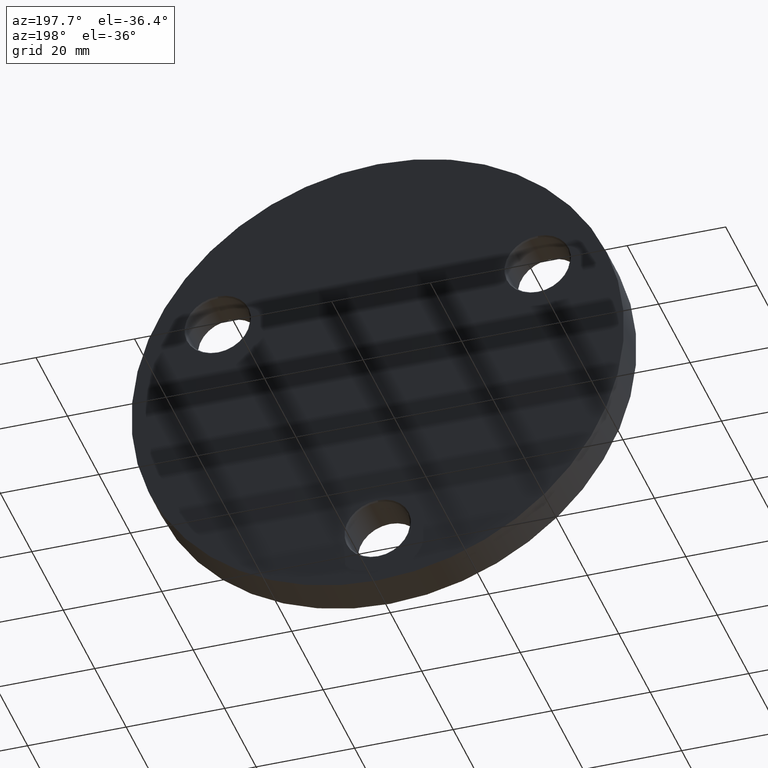
[diagram: clean part render]
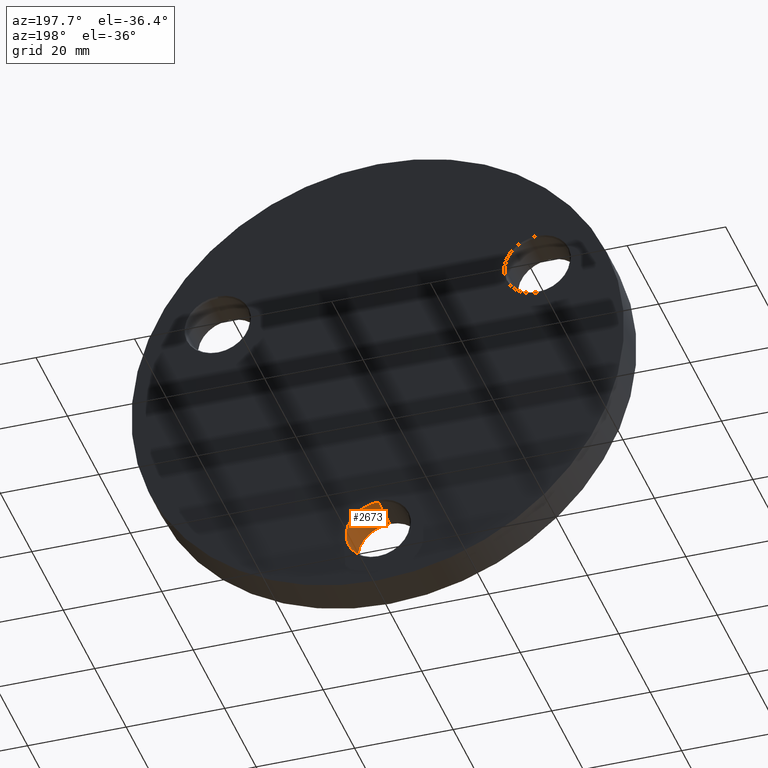
[diagram: same view with one face highlighted and labeled with its STEP entity id]
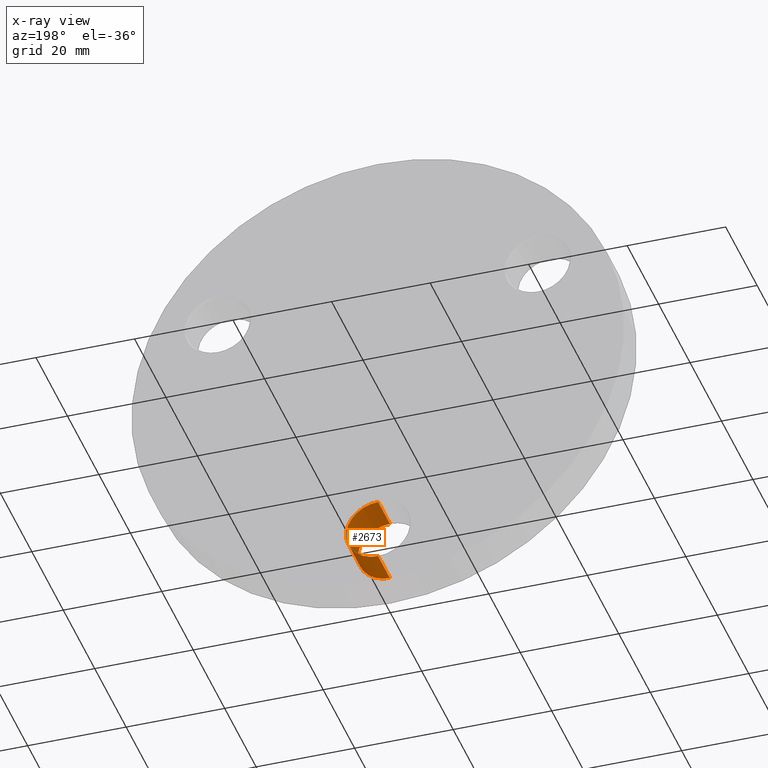
[diagram: x-ray of the same camera — body ghosted, the highlighted face saturated]
A machine part, auxiliary view. The second image highlights one B-rep face of the part: STEP entity #2673.
The next image is the same camera in x-ray: the body ghosted, the highlighted face saturated — about 0% of this face is hidden behind the body in this view.
In plain terms, the highlighted cylindrical surface (edge-blend (fillet) strip) has radius 6.5 mm, axis along (-0, -1, -0).
Its self-contained STEP definition (entity closure, byte-faithful):
#663 = VECTOR ( 'NONE', #8363, 1000.000000000000000 ) ;
#1532 = ORIENTED_EDGE ( 'NONE', *, *, #6232, .T. ) ;
#1585 = FACE_OUTER_BOUND ( 'NONE', #13110, .T. ) ;
#1713 = CARTESIAN_POINT ( 'NONE',  ( 7.960204194457797449E-16, 7.749999999999995559, -31.00000000000000000 ) ) ;
#2111 = DIRECTION ( 'NONE',  ( -0.000000000000000000, -1.000000000000000000, -0.000000000000000000 ) ) ;
#2322 = DIRECTION ( 'NONE',  ( -0.000000000000000000, -1.000000000000000000, -0.000000000000000000 ) ) ;
#2360 = EDGE_CURVE ( 'NONE', #9726, #9815, #11381, .T. ) ;
#2673 = ADVANCED_FACE ( 'NONE', ( #1585 ), #5268, .F. ) ;
#3161 = CARTESIAN_POINT ( 'NONE',  ( 0.000000000000000000, 7.749999999999995559, -37.50000000000000000 ) ) ;
#3786 = AXIS2_PLACEMENT_3D ( 'NONE', #3161, #10976, #5270 ) ;
#3832 = ORIENTED_EDGE ( 'NONE', *, *, #6691, .F. ) ;
#4615 = EDGE_CURVE ( 'NONE', #5491, #9832, #14347, .T. ) ;
#5170 = CARTESIAN_POINT ( 'NONE',  ( 0.000000000000000000, 0.2499999999999716060, -44.00000000000000000 ) ) ;
#5190 = CARTESIAN_POINT ( 'NONE',  ( 0.000000000000000000, 7.749999999999995559, -44.00000000000000000 ) ) ;
#5268 = CYLINDRICAL_SURFACE ( 'NONE', #8099, 6.499999999999999112 ) ;
#5270 = DIRECTION ( 'NONE',  ( 0.000000000000000000, 0.000000000000000000, 1.000000000000000000 ) ) ;
#5491 = VERTEX_POINT ( 'NONE', #5170 ) ;
#5623 = CARTESIAN_POINT ( 'NONE',  ( 7.960204194457797449E-16, 0.2499999999999716060, -31.00000000000000000 ) ) ;
#5698 = DIRECTION ( 'NONE',  ( 0.000000000000000000, 0.000000000000000000, 1.000000000000000000 ) ) ;
#6056 = CARTESIAN_POINT ( 'NONE',  ( 0.000000000000000000, 8.000000000000000000, -37.50000000000000000 ) ) ;
#6232 = EDGE_CURVE ( 'NONE', #9815, #5491, #12039, .T. ) ;
#6691 = EDGE_CURVE ( 'NONE', #9726, #9832, #11487, .T. ) ;
#7204 = ORIENTED_EDGE ( 'NONE', *, *, #4615, .T. ) ;
#7760 = CARTESIAN_POINT ( 'NONE',  ( 0.000000000000000000, 0.2499999999999716060, -37.50000000000000000 ) ) ;
#8099 = AXIS2_PLACEMENT_3D ( 'NONE', #6056, #8361, #13938 ) ;
#8361 = DIRECTION ( 'NONE',  ( -0.000000000000000000, -1.000000000000000000, -0.000000000000000000 ) ) ;
#8363 = DIRECTION ( 'NONE',  ( -0.000000000000000000, -1.000000000000000000, -0.000000000000000000 ) ) ;
#9726 = VERTEX_POINT ( 'NONE', #1713 ) ;
#9815 = VERTEX_POINT ( 'NONE', #5190 ) ;
#9832 = VERTEX_POINT ( 'NONE', #5623 ) ;
#10555 = CARTESIAN_POINT ( 'NONE',  ( 0.000000000000000000, 8.000000000000000000, -44.00000000000000000 ) ) ;
#10976 = DIRECTION ( 'NONE',  ( 0.000000000000000000, 1.000000000000000000, 0.000000000000000000 ) ) ;
#11381 = CIRCLE ( 'NONE', #3786, 6.499999999999999112 ) ;
#11487 = LINE ( 'NONE', #12141, #12213 ) ;
#12039 = LINE ( 'NONE', #10555, #663 ) ;
#12141 = CARTESIAN_POINT ( 'NONE',  ( 7.960204194457795477E-16, 8.000000000000000000, -31.00000000000000000 ) ) ;
#12213 = VECTOR ( 'NONE', #2111, 1000.000000000000000 ) ;
#12427 = ORIENTED_EDGE ( 'NONE', *, *, #2360, .T. ) ;
#13110 = EDGE_LOOP ( 'NONE', ( #3832, #12427, #1532, #7204 ) ) ;
#13269 = AXIS2_PLACEMENT_3D ( 'NONE', #7760, #2322, #5698 ) ;
#13938 = DIRECTION ( 'NONE',  ( 0.000000000000000000, 0.000000000000000000, -1.000000000000000000 ) ) ;
#14347 = CIRCLE ( 'NONE', #13269, 6.499999999999999112 ) ;